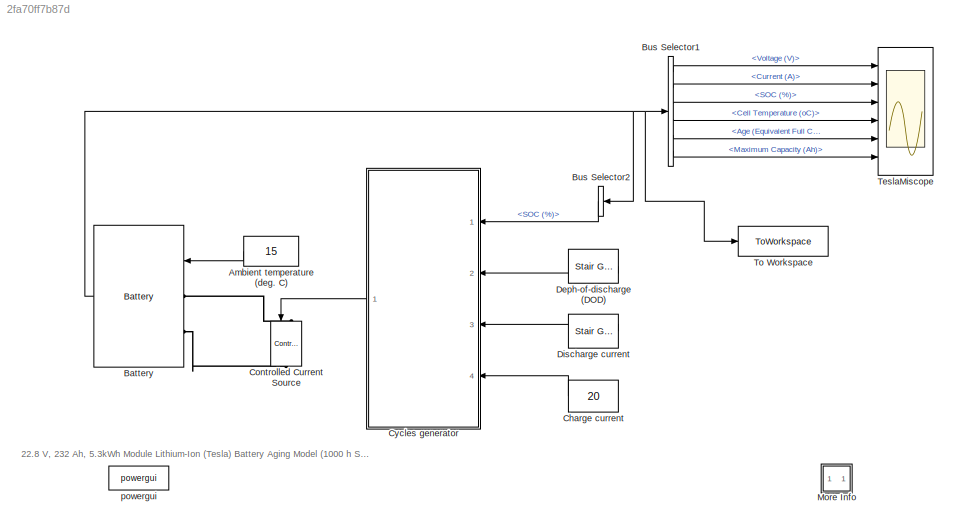
MODEL slx_2fa70ff7b87d
KIND model
CONFIG AbsTol = auto
CONFIG EnableMultiTasking = on
CONFIG FixedStep = auto
CONFIG MaxStep = auto
CONFIG MinStep = auto
CONFIG RelTol = 1e-3
CONFIG SampleTimeConstraint = Unconstrained
CONFIG SolverName = ode23tb
CONFIG StartTime = 0.0
CONFIG StopTime = 14400*250
BLOCK [Constant] Ambient temperature (deg. C)
  NameLocation = top
  Value = 15
BLOCK [Reference] Battery  REF=spsBatteryLib/Battery
  Ports = [1, 1, 0, 0, 0, 2]
  SourceBlock = spsBatteryLib/Battery
  SourceProductBaseCode = PS
  SourceType = Battery
BLOCK [BusSelector] Bus Selector1
  OutputSignals = Voltage (V),Current (A),SOC (%),Cell Temperature (oC),Age (Equivalent Full Cycles),Maximum Capacity  (Ah)
  Ports = [1, 6]
BLOCK [BusSelector] Bus Selector2
  NameLocation = top
  OutputSignals = SOC (%)
  Ports = [1, 1]
BLOCK [Constant] Charge current
  NameLocation = top
  Value = 20
BLOCK [Reference] Controlled Current Source  REF=spsControlledCurrentSourceLib/Controlled Current Source
  NameLocation = left
  Ports = [1, 0, 0, 0, 0, 1, 1]
  SourceBlock = spsControlledCurrentSourceLib/Controlled Current Source
  SourceProductBaseCode = PS
  SourceType = Controlled Current Source
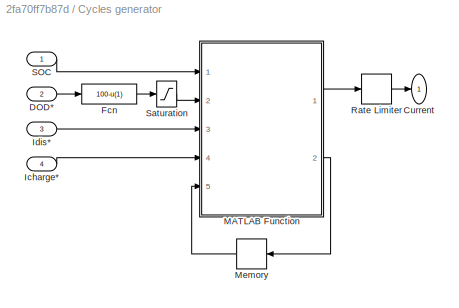
BLOCK [SubSystem] Cycles generator
  Ports = [4, 1]
  RequestExecContextInheritance = off
BLOCK [Outport] Cycles generator/Current
  NameLocation = top
  VectorParamsAs1DForOutWhenUnconnected = off
BLOCK [Inport] Cycles generator/DOD*
  Port = 2
BLOCK [Fcn] Cycles generator/Fcn
  Expr = 100-u(1)
BLOCK [Inport] Cycles generator/Icharge*
  Port = 4
BLOCK [Inport] Cycles generator/Idis*
  Port = 3
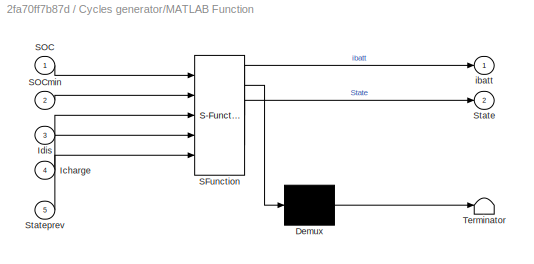
BLOCK [SubSystem] Cycles generator/MATLAB Function
  ErrorFcn = Stateflow.Translate.translate
  PermitHierarchicalResolution = ExplicitOnly
  Ports = [5, 2]
  RequestExecContextInheritance = off
  SFBlockType = MATLAB Function
  TreatAsAtomicUnit = on
BLOCK [Demux] Cycles generator/MATLAB Function/ Demux 
  Outputs = 1
  Ports = [1, 1]
BLOCK [S-Function] Cycles generator/MATLAB Function/ SFunction 
  EnableBusSupport = on
  FunctionName = sf_sfun
  PortCounts = [5 3]
  Ports = [5, 3]
  SFcnIsStateOwnerBlock = off
  SFunctionDeploymentMode = off
  Tag = Stateflow S-Function 2
BLOCK [Terminator] Cycles generator/MATLAB Function/ Terminator 
BLOCK [Inport] Cycles generator/MATLAB Function/Icharge
  Port = 4
BLOCK [Inport] Cycles generator/MATLAB Function/Idis
  Port = 3
BLOCK [Inport] Cycles generator/MATLAB Function/SOC
BLOCK [Inport] Cycles generator/MATLAB Function/SOCmin
  Port = 2
BLOCK [Outport] Cycles generator/MATLAB Function/State
  Port = 2
  VectorParamsAs1DForOutWhenUnconnected = off
BLOCK [Inport] Cycles generator/MATLAB Function/Stateprev
  Port = 5
BLOCK [Outport] Cycles generator/MATLAB Function/ibatt
  VectorParamsAs1DForOutWhenUnconnected = off
BLOCK [Memory] Cycles generator/Memory
  InitialCondition = 1
BLOCK [RateLimiter] Cycles generator/Rate Limiter
  FallingSlewLimit = -1000
  RisingSlewLimit = 1000
  SampleTimeMode = inherited
BLOCK [Inport] Cycles generator/SOC
BLOCK [Saturate] Cycles generator/Saturation
  LowerLimit = 1
  UpperLimit = 98
BLOCK [Reference] Deph-of-discharge (DOD)  REF=spsStairGeneratorLib/Stair
Generator
  NameLocation = top
  Ports = [0, 1]
  SourceBlock = spsStairGeneratorLib/Stair\nGenerator
  SourceProductBaseCode = PS
  SourceType = Stair Generator
BLOCK [Reference] Discharge current  REF=spsStairGeneratorLib/Stair
Generator
  NameLocation = top
  Ports = [0, 1]
  SourceBlock = spsStairGeneratorLib/Stair\nGenerator
  SourceProductBaseCode = PS
  SourceType = Stair Generator
BLOCK [SubSystem] More Info
  OpenFcn = showdemo(bdroot(gcb))
  Ports = []
  RequestExecContextInheritance = off
BLOCK [Scope] TeslaMiscope
  Floating = off
  NumInputPorts = 6
  Ports = [6]
  ScopeSpecificationString = Simulink.scopes.TimeScopeBlockCfg('CurrentConfiguration', extmgr.ConfigurationSet(extmgr.Configuration('Core','General UI',true),extmgr.Configuration('Core','Source UI',true),extmgr.Configuration('Sources','WiredSimulink',true),extmgr.Configuration('Visuals','Time Domain',true,'SerializedDisplays',{struct('MinYLimReal','23.38031','MaxYLimReal','29.26443','YLabelReal','','MinYLimMag','23.38031','Ma...<+4885ch>
BLOCK [ToWorkspace] To Workspace
  FixptAsFi = on
  MaxDataPoints = inf
  Ports = [1]
  SampleTime = -1
  SaveFormat = Timeseries
  VariableName = TeslaMichigan
BLOCK [Reference] powergui  REF=spspowerguiLib/powergui
  Ports = []
  SourceBlock = spspowerguiLib/powergui
  SourceProductBaseCode = PS
  SourceType = PSB option menu block
ANNOTATION (root): 22.8 V, 232 Ah, 5.3kWh Module Lithium-Ion (Tesla) Battery Aging Model (1000 h Simulation)
LINE Ambient temperature (deg. C):1 -> Battery:1
NET Battery:1 -> Bus Selector1:1, Bus Selector2:1, To Workspace:1
LINE Bus Selector1:1 -> TeslaMiscope:1
LINE Bus Selector1:2 -> TeslaMiscope:2
LINE Bus Selector1:3 -> TeslaMiscope:3
LINE Bus Selector1:4 -> TeslaMiscope:4
LINE Bus Selector1:5 -> TeslaMiscope:5
LINE Bus Selector1:6 -> TeslaMiscope:6
LINE Bus Selector2:1 -> Cycles generator:1
LINE Charge current:1 -> Cycles generator:4
LINE Cycles generator/DOD*:1 -> Cycles generator/Fcn:1
LINE Cycles generator/Fcn:1 -> Cycles generator/Saturation:1
LINE Cycles generator/Icharge*:1 -> Cycles generator/MATLAB Function:4
LINE Cycles generator/Idis*:1 -> Cycles generator/MATLAB Function:3
LINE Cycles generator/MATLAB Function:1 -> Cycles generator/Rate Limiter:1
LINE Cycles generator/MATLAB Function:2 -> Cycles generator/Memory:1
LINE Cycles generator/Memory:1 -> Cycles generator/MATLAB Function:5
LINE Cycles generator/Rate Limiter:1 -> Cycles generator/Current:1
LINE Cycles generator/SOC:1 -> Cycles generator/MATLAB Function:1
LINE Cycles generator/Saturation:1 -> Cycles generator/MATLAB Function:2
LINE Cycles generator:1 -> Controlled Current Source:1
LINE Deph-of-discharge (DOD):1 -> Cycles generator:2
LINE Discharge current:1 -> Cycles generator:3
PLINE Battery:LConn1 -- Controlled Current Source:LConn1
PLINE Battery:LConn2 -- Controlled Current Source:RConn1
note: NET lines group one-source signal fan-out (src -> all destinations, sorted); 1:1 wires keep LINE
CHART Cycles generator/MATLAB Function states=1 transitions=1
  STATE_LABEL 'eML_blk_kernel()'
  STATE_LABEL 'SCRIPT:\nfunction [ibatt,State] = fcn(SOC,SOCmin,Idis,Icharge,Stateprev)\n%#codegen\nState=Stateprev;\nif(Stateprev==1 && SOC<=SOCmin)\n    State=0;\nend\nif(Stateprev==0 && SOC>=99)\n    State=1;\nend\nif (Stateprev==1)\n    ibatt=Idis;\nelse\n    ibatt=-Icharge;\nend\n'
CHART  states=0 transitions=0
